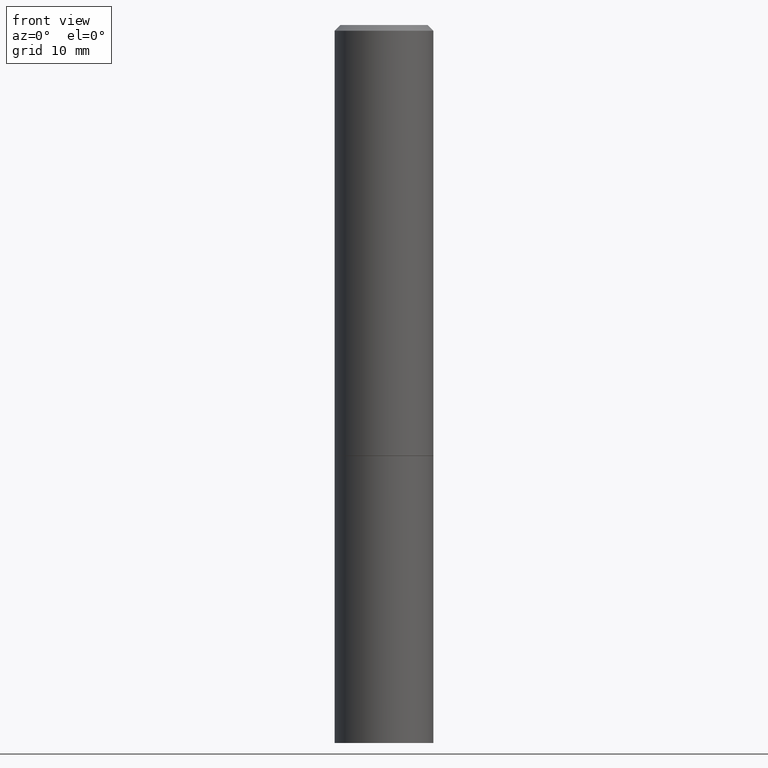
[diagram: clean part render]
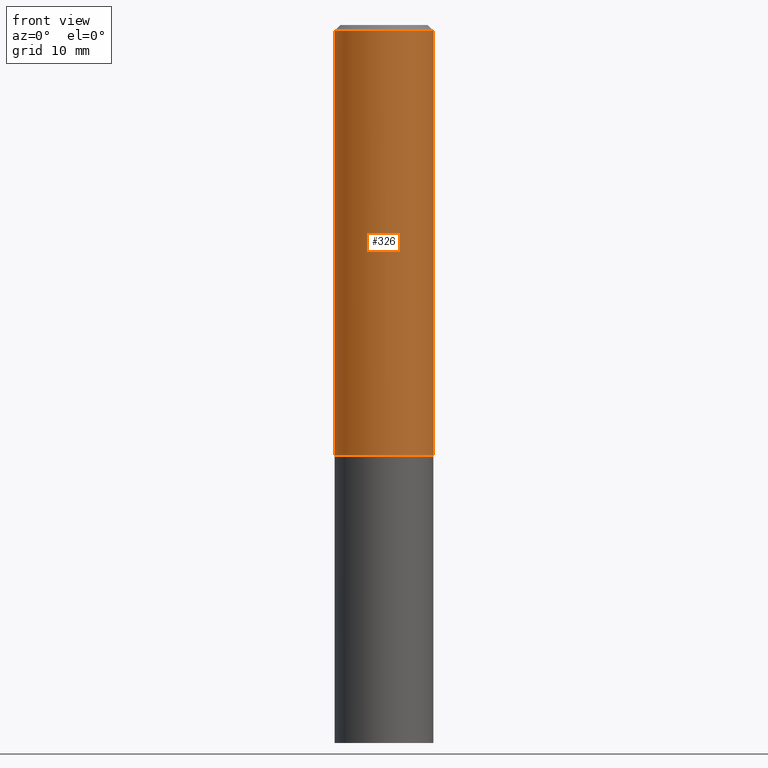
[diagram: same view with one face highlighted and labeled with its STEP entity id]
A machine part, front view. The second image highlights one B-rep face of the part: STEP entity #326.
In plain terms, the highlighted cylindrical surface (partial cylindrical patch) has radius 4.3663 mm, axis along (-0, 0, 1).
Its self-contained STEP definition (entity closure, byte-faithful):
#1 = CARTESIAN_POINT ( 'NONE',  ( 4.890937612370283668E-31, -6.982962677686305168E-17, -0.02000000000000004205 ) ) ;
#4 = DIRECTION ( 'NONE',  ( -2.445468806185136877E-29, 3.491481338843145188E-15, 1.000000000000000000 ) ) ;
#32 = CYLINDRICAL_SURFACE ( 'NONE', #169, 0.1718999999999998862 ) ;
#58 = DIRECTION ( 'NONE',  ( -2.445468806185136597E-29, 3.491481338843145583E-15, 1.000000000000000000 ) ) ;
#59 = CIRCLE ( 'NONE', #73, 0.1718999999999998030 ) ;
#66 = CARTESIAN_POINT ( 'NONE',  ( -0.1718999999999999695, -1.430357114079755851E-15, -1.499000000000000110 ) ) ;
#73 = AXIS2_PLACEMENT_3D ( 'NONE', #1, #128, #133 ) ;
#80 = CARTESIAN_POINT ( 'NONE',  ( 0.1718999999999998862, -1.200371284294268255E-15, 8.382147877593207473E-30 ) ) ;
#84 = CARTESIAN_POINT ( 'NONE',  ( -0.1718999999999998030, 1.130541657517404957E-15, -0.02000000000000004205 ) ) ;
#89 = VERTEX_POINT ( 'NONE', #84 ) ;
#97 = CARTESIAN_POINT ( 'NONE',  ( -0.1718999999999998862, 1.221422962771611411E-15, -8.455649420148177574E-30 ) ) ;
#118 = EDGE_LOOP ( 'NONE', ( #297, #265, #161, #202 ) ) ;
#128 = DIRECTION ( 'NONE',  ( -2.445468806185136597E-29, 3.491481338843145583E-15, 1.000000000000000000 ) ) ;
#129 = VERTEX_POINT ( 'NONE', #380 ) ;
#133 = DIRECTION ( 'NONE',  ( 1.000000000000000000, -6.982962677686267499E-15, 0.000000000000000000 ) ) ;
#156 = EDGE_CURVE ( 'NONE', #89, #334, #59, .T. ) ;
#158 = VECTOR ( 'NONE', #4, 39.37007874015748143 ) ;
#160 = LINE ( 'NONE', #97, #276 ) ;
#161 = ORIENTED_EDGE ( 'NONE', *, *, #185, .T. ) ;
#165 = DIRECTION ( 'NONE',  ( 1.000000000000000000, -6.982962677686265922E-15, 4.876176775795935232E-29 ) ) ;
#169 = AXIS2_PLACEMENT_3D ( 'NONE', #307, #366, #165 ) ;
#184 = DIRECTION ( 'NONE',  ( 1.000000000000000000, -6.982962677686268288E-15, 0.000000000000000000 ) ) ;
#185 = EDGE_CURVE ( 'NONE', #129, #334, #226, .T. ) ;
#190 = FACE_OUTER_BOUND ( 'NONE', #118, .T. ) ;
#202 = ORIENTED_EDGE ( 'NONE', *, *, #156, .F. ) ;
#226 = LINE ( 'NONE', #80, #158 ) ;
#250 = CARTESIAN_POINT ( 'NONE',  ( 0.1718999999999998030, -1.249149232593788003E-15, -0.02000000000000004205 ) ) ;
#259 = EDGE_CURVE ( 'NONE', #279, #129, #323, .T. ) ;
#265 = ORIENTED_EDGE ( 'NONE', *, *, #259, .T. ) ;
#276 = VECTOR ( 'NONE', #341, 39.37007874015748143 ) ;
#279 = VERTEX_POINT ( 'NONE', #66 ) ;
#297 = ORIENTED_EDGE ( 'NONE', *, *, #350, .F. ) ;
#307 = CARTESIAN_POINT ( 'NONE',  ( 0.000000000000000000, 0.000000000000000000, 0.000000000000000000 ) ) ;
#323 = CIRCLE ( 'NONE', #374, 0.1718999999999999695 ) ;
#326 = ADVANCED_FACE ( 'NONE', ( #190 ), #32, .T. ) ;
#328 = CARTESIAN_POINT ( 'NONE',  ( 3.665757740471519853E-29, -5.233730526925875958E-15, -1.499000000000000110 ) ) ;
#334 = VERTEX_POINT ( 'NONE', #250 ) ;
#341 = DIRECTION ( 'NONE',  ( -2.445468806185136877E-29, 3.491481338843145188E-15, 1.000000000000000000 ) ) ;
#350 = EDGE_CURVE ( 'NONE', #279, #89, #160, .T. ) ;
#366 = DIRECTION ( 'NONE',  ( -2.445468806185136597E-29, 3.491481338843145583E-15, 1.000000000000000000 ) ) ;
#374 = AXIS2_PLACEMENT_3D ( 'NONE', #328, #58, #184 ) ;
#380 = CARTESIAN_POINT ( 'NONE',  ( 0.1718999999999999695, -6.434101811220145200E-15, -1.499000000000000110 ) ) ;